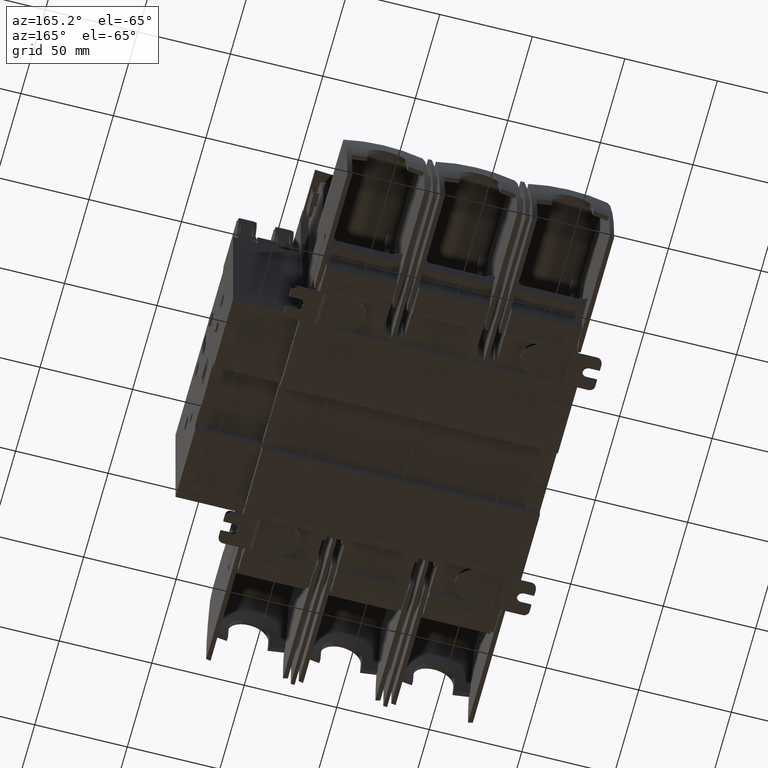
[diagram: clean part render]
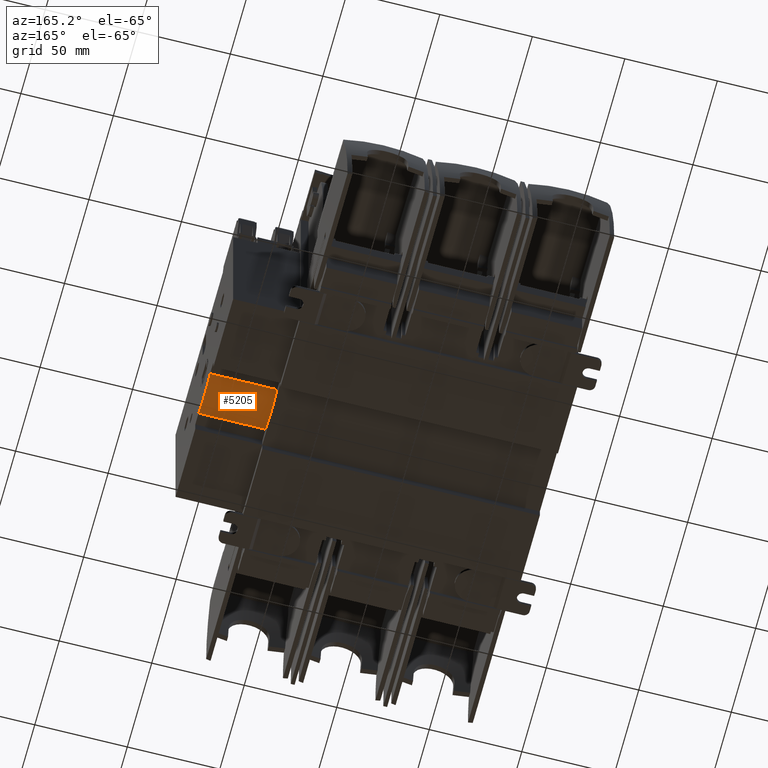
[diagram: same view with one face highlighted and labeled with its STEP entity id]
A machine part, auxiliary view. The second image highlights one B-rep face of the part: STEP entity #5205.
In plain terms, the highlighted cylindrical surface (partial cylindrical patch) has radius 28 mm, axis along (1, 0, 0).
Its self-contained STEP definition (entity closure, byte-faithful):
#2352=FACE_OUTER_BOUND('',#9278,.T.);
#5205=ADVANCED_FACE('',(#2352),#7553,.T.);
#7553=CYLINDRICAL_SURFACE('',#46628,28.);
#7950=CIRCLE('',#46626,28.);
#7951=CIRCLE('',#46627,28.);
#9278=EDGE_LOOP('',(#12744,#12745,#12746,#12747));
#12744=ORIENTED_EDGE('',*,*,#30150,.F.);
#12745=ORIENTED_EDGE('',*,*,#30151,.F.);
#12746=ORIENTED_EDGE('',*,*,#30152,.F.);
#12747=ORIENTED_EDGE('',*,*,#30153,.F.);
#25603=VERTEX_POINT('',#62607);
#25604=VERTEX_POINT('',#62608);
#25605=VERTEX_POINT('',#62610);
#25606=VERTEX_POINT('',#62612);
#30150=EDGE_CURVE('',#25603,#25604,#36677,.T.);
#30151=EDGE_CURVE('',#25605,#25603,#7950,.T.);
#30152=EDGE_CURVE('',#25606,#25605,#36678,.T.);
#30153=EDGE_CURVE('',#25604,#25606,#7951,.T.);
#36677=LINE('',#62606,#41746);
#36678=LINE('',#62611,#41747);
#41746=VECTOR('',#50418,1.);
#41747=VECTOR('',#50421,1.);
#46626=AXIS2_PLACEMENT_3D('',#62609,#50419,#50420);
#46627=AXIS2_PLACEMENT_3D('',#62613,#50422,#50423);
#46628=AXIS2_PLACEMENT_3D('',#62614,#50424,#50425);
#50418=DIRECTION('',(-1.,-4.16333634234433E-017,-2.77555756156289E-017));
#50419=DIRECTION('',(1.,4.16333634234433E-017,2.77555756156289E-017));
#50420=DIRECTION('',(0.,1.,0.));
#50421=DIRECTION('',(1.,4.16333634234433E-017,2.77555756156289E-017));
#50422=DIRECTION('',(-1.,-4.16333634234433E-017,-2.77555756156289E-017));
#50423=DIRECTION('',(0.,-1.,0.));
#50424=DIRECTION('',(1.,4.16333634234433E-017,2.77555756156289E-017));
#50425=DIRECTION('',(0.,1.,0.));
#62606=CARTESIAN_POINT('',(78.0000000000007,11.7830386573242,-25.3999999999999));
#62607=CARTESIAN_POINT('',(111.200000000001,11.7830386573246,-25.3999999999999));
#62608=CARTESIAN_POINT('',(75.0000000000007,11.7830386573244,-25.3999999999999));
#62609=CARTESIAN_POINT('',(111.200000000001,2.0122792321331E-013,8.32667268468867E-014));
#62610=CARTESIAN_POINT('',(111.200000000001,-11.783038657324,-25.3999999999999));
#62611=CARTESIAN_POINT('',(78.0000000000007,-11.7830386573238,-25.3999999999998));
#62612=CARTESIAN_POINT('',(75.0000000000007,-11.783038657324,-25.3999999999999));
#62613=CARTESIAN_POINT('',(75.0000000000007,2.0122792321331E-013,8.32667268468867E-014));
#62614=CARTESIAN_POINT('',(78.0000000000007,2.0122792321331E-013,8.32667268468867E-014));